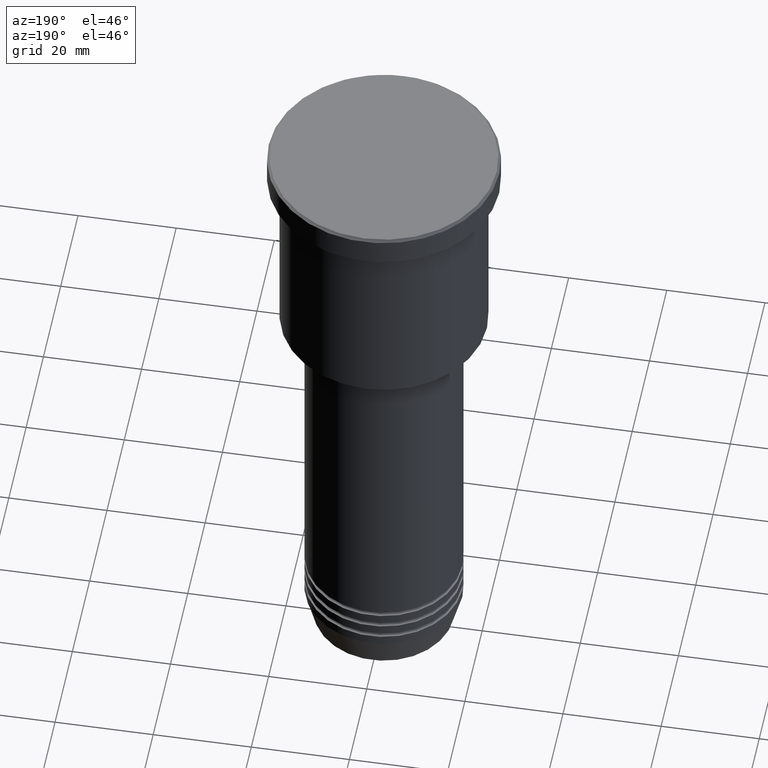
[diagram: clean part render]
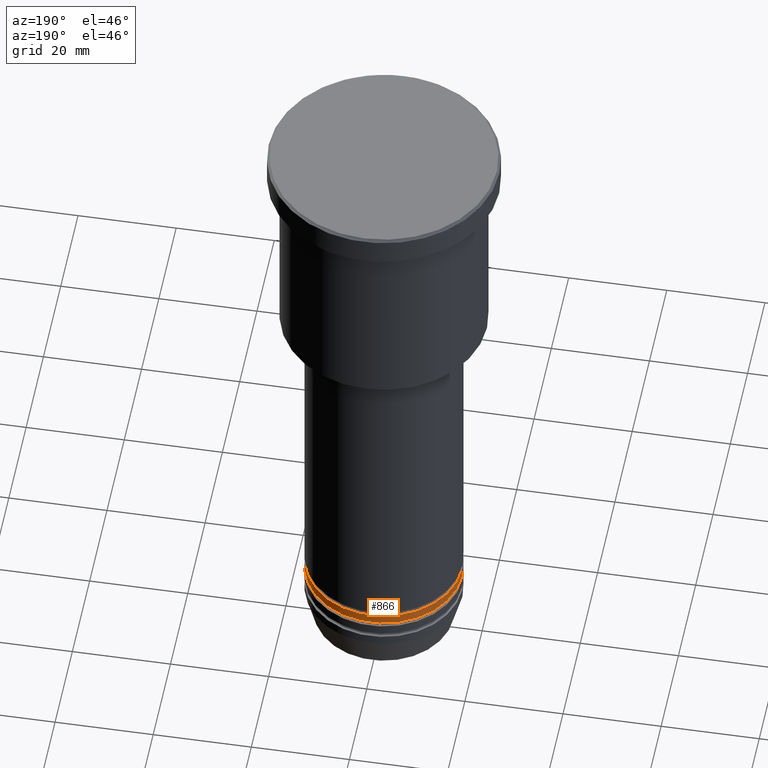
[diagram: same view with one face highlighted and labeled with its STEP entity id]
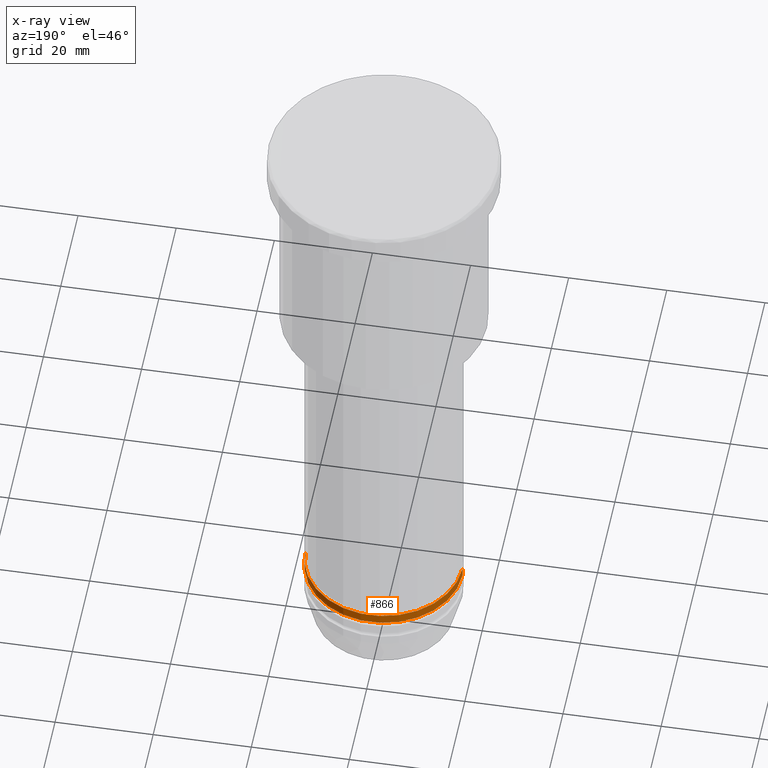
[diagram: x-ray of the same camera — body ghosted, the highlighted face saturated]
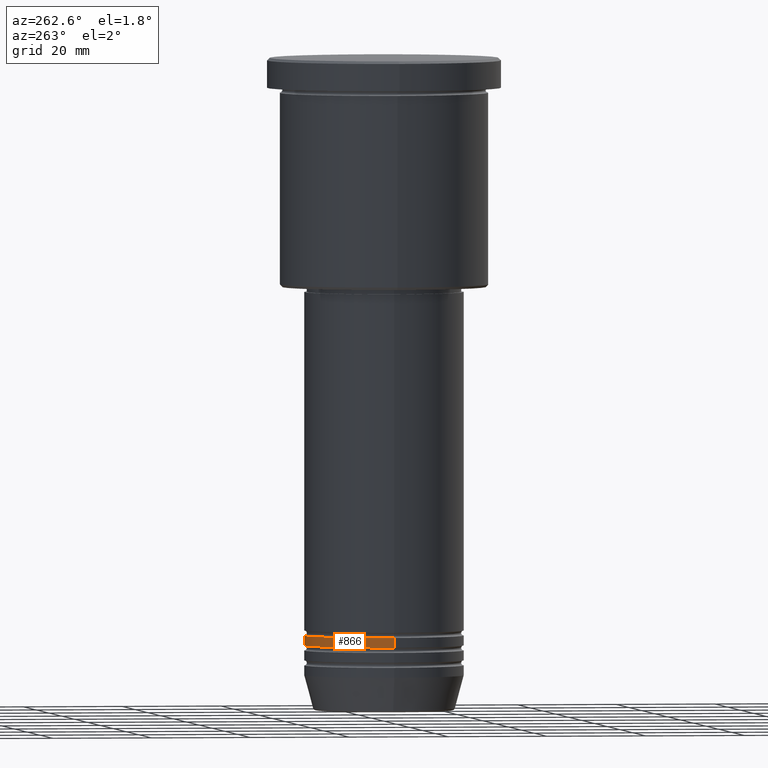
[diagram: same view with one face highlighted and labeled with its STEP entity id]
A machine part, auxiliary view. The second image highlights one B-rep face of the part: STEP entity #866.
The next image is the same camera in x-ray: the body ghosted, the highlighted face saturated — about 0% of this face is hidden behind the body in this view.
A second angle (auxiliary view) of the same face is appended — the face is thin or edge-on in the first view.
In plain terms, the highlighted cylindrical surface (partial cylindrical patch) has radius 16 mm, axis along (-0, -0, 1).
Its self-contained STEP definition (entity closure, byte-faithful):
#81 = VECTOR ( 'NONE', #1085, 1000.000000000000000 ) ;
#85 = CARTESIAN_POINT ( 'NONE',  ( -16.00000000000000000, 1.959434878635765131E-15, 0.000000000000000000 ) ) ;
#104 = ORIENTED_EDGE ( 'NONE', *, *, #753, .F. ) ;
#116 = AXIS2_PLACEMENT_3D ( 'NONE', #1028, #298, #594 ) ;
#121 = CARTESIAN_POINT ( 'NONE',  ( 16.00000000000000000, 0.000000000000000000, 0.000000000000000000 ) ) ;
#176 = DIRECTION ( 'NONE',  ( 1.000000000000000000, 0.000000000000000000, 0.000000000000000000 ) ) ;
#189 = CARTESIAN_POINT ( 'NONE',  ( 16.00000000000000000, 0.000000000000000000, -117.9999999999999716 ) ) ;
#193 = CIRCLE ( 'NONE', #315, 16.00000000000000000 ) ;
#196 = CARTESIAN_POINT ( 'NONE',  ( 16.00000000000000000, 0.000000000000000000, -115.9999999999999716 ) ) ;
#268 = ORIENTED_EDGE ( 'NONE', *, *, #838, .F. ) ;
#298 = DIRECTION ( 'NONE',  ( -0.000000000000000000, -0.000000000000000000, 1.000000000000000000 ) ) ;
#308 = AXIS2_PLACEMENT_3D ( 'NONE', #853, #578, #316 ) ;
#315 = AXIS2_PLACEMENT_3D ( 'NONE', #560, #997, #176 ) ;
#316 = DIRECTION ( 'NONE',  ( 1.000000000000000000, 0.000000000000000000, 0.000000000000000000 ) ) ;
#388 = CIRCLE ( 'NONE', #116, 16.00000000000000000 ) ;
#461 = CARTESIAN_POINT ( 'NONE',  ( -16.00000000000000000, 1.959434878635765131E-15, -117.9999999999999716 ) ) ;
#560 = CARTESIAN_POINT ( 'NONE',  ( 0.000000000000000000, 0.000000000000000000, -115.9999999999999716 ) ) ;
#578 = DIRECTION ( 'NONE',  ( -0.000000000000000000, -0.000000000000000000, 1.000000000000000000 ) ) ;
#594 = DIRECTION ( 'NONE',  ( 1.000000000000000000, 0.000000000000000000, 0.000000000000000000 ) ) ;
#738 = ORIENTED_EDGE ( 'NONE', *, *, #1163, .T. ) ;
#750 = DIRECTION ( 'NONE',  ( -0.000000000000000000, -0.000000000000000000, 1.000000000000000000 ) ) ;
#753 = EDGE_CURVE ( 'NONE', #828, #1060, #193, .T. ) ;
#805 = VERTEX_POINT ( 'NONE', #189 ) ;
#828 = VERTEX_POINT ( 'NONE', #196 ) ;
#832 = LINE ( 'NONE', #85, #81 ) ;
#838 = EDGE_CURVE ( 'NONE', #805, #828, #955, .T. ) ;
#853 = CARTESIAN_POINT ( 'NONE',  ( 0.000000000000000000, 0.000000000000000000, 0.000000000000000000 ) ) ;
#866 = ADVANCED_FACE ( 'NONE', ( #1130 ), #942, .T. ) ;
#940 = EDGE_CURVE ( 'NONE', #805, #1123, #388, .T. ) ;
#942 = CYLINDRICAL_SURFACE ( 'NONE', #308, 16.00000000000000000 ) ;
#955 = LINE ( 'NONE', #121, #1127 ) ;
#956 = EDGE_LOOP ( 'NONE', ( #991, #738, #104, #268 ) ) ;
#991 = ORIENTED_EDGE ( 'NONE', *, *, #940, .T. ) ;
#997 = DIRECTION ( 'NONE',  ( -0.000000000000000000, -0.000000000000000000, 1.000000000000000000 ) ) ;
#1028 = CARTESIAN_POINT ( 'NONE',  ( 0.000000000000000000, 0.000000000000000000, -117.9999999999999716 ) ) ;
#1057 = CARTESIAN_POINT ( 'NONE',  ( -16.00000000000000000, 1.959434878635765131E-15, -115.9999999999999716 ) ) ;
#1060 = VERTEX_POINT ( 'NONE', #1057 ) ;
#1085 = DIRECTION ( 'NONE',  ( -0.000000000000000000, -0.000000000000000000, 1.000000000000000000 ) ) ;
#1123 = VERTEX_POINT ( 'NONE', #461 ) ;
#1127 = VECTOR ( 'NONE', #750, 1000.000000000000000 ) ;
#1130 = FACE_OUTER_BOUND ( 'NONE', #956, .T. ) ;
#1163 = EDGE_CURVE ( 'NONE', #1123, #1060, #832, .T. ) ;